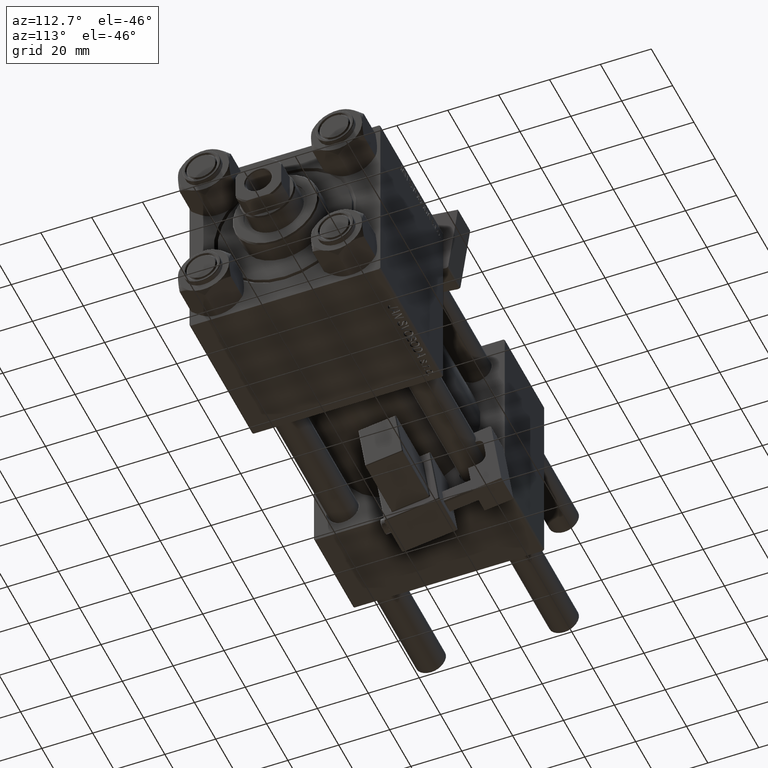
[diagram: clean part render]
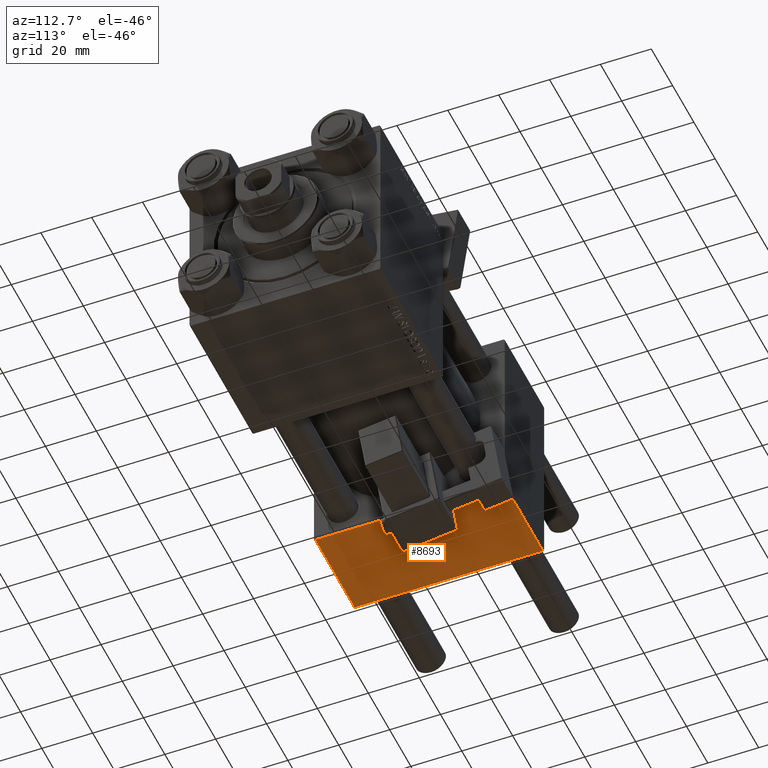
[diagram: same view with one face highlighted and labeled with its STEP entity id]
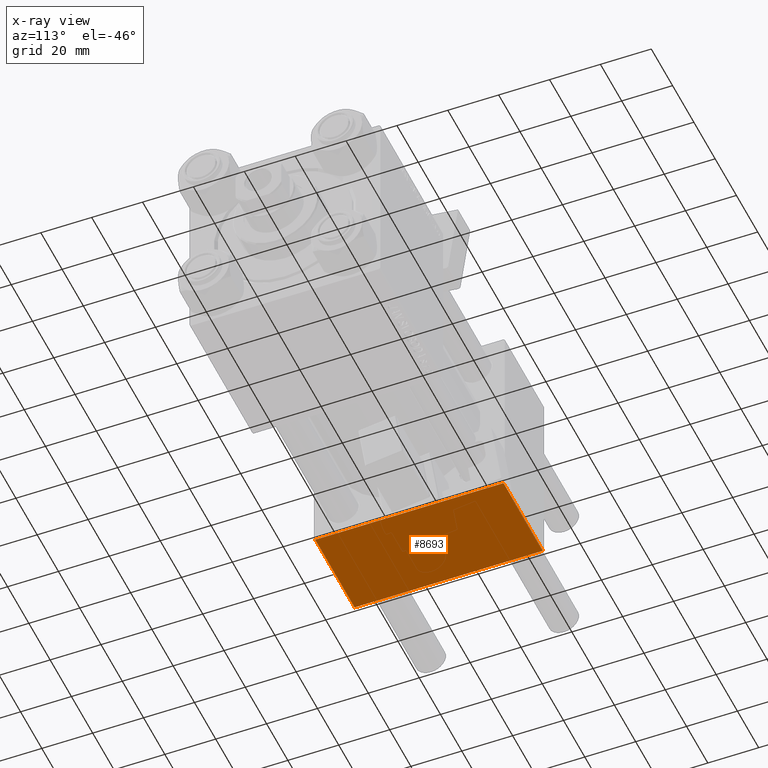
[diagram: x-ray of the same camera — body ghosted, the highlighted face saturated]
A machine part, auxiliary view. The second image highlights one B-rep face of the part: STEP entity #8693.
The next image is the same camera in x-ray: the body ghosted, the highlighted face saturated — about 0% of this face is hidden behind the body in this view.
In plain terms, the highlighted planar face has unit normal (0, 0, -1).
Its self-contained STEP definition (entity closure, byte-faithful):
#2168 = EDGE_LOOP ( 'NONE', ( #3083, #25006, #16548, #2374 ) ) ;
#2318 = DIRECTION ( 'NONE',  ( 0.000000000000000000, 9.251858538542972814E-17, -1.000000000000000000 ) ) ;
#2374 = ORIENTED_EDGE ( 'NONE', *, *, #5019, .T. ) ;
#3083 = ORIENTED_EDGE ( 'NONE', *, *, #44931, .F. ) ;
#4747 = VERTEX_POINT ( 'NONE', #50187 ) ;
#5019 = EDGE_CURVE ( 'NONE', #37050, #31851, #16768, .T. ) ;
#5776 = VECTOR ( 'NONE', #44390, 1000.000000000000000 ) ;
#6783 = CARTESIAN_POINT ( 'NONE',  ( 37.00000000000000000, 37.49999999999999289, -37.50000000000000000 ) ) ;
#6921 = CARTESIAN_POINT ( 'NONE',  ( 0.000000000000000000, 37.49999999999999289, -37.50000000000000000 ) ) ;
#8221 = CARTESIAN_POINT ( 'NONE',  ( 37.00000000000000000, 36.99999999999997868, -37.50000000000000000 ) ) ;
#8693 = ADVANCED_FACE ( 'NONE', ( #15161 ), #45927, .T. ) ;
#11109 = LINE ( 'NONE', #6921, #48318 ) ;
#12067 = VECTOR ( 'NONE', #44502, 1000.000000000000000 ) ;
#14507 = EDGE_CURVE ( 'NONE', #4747, #19148, #16264, .T. ) ;
#15161 = FACE_OUTER_BOUND ( 'NONE', #2168, .T. ) ;
#16264 = LINE ( 'NONE', #25202, #5776 ) ;
#16548 = ORIENTED_EDGE ( 'NONE', *, *, #35590, .T. ) ;
#16768 = LINE ( 'NONE', #24392, #44183 ) ;
#19148 = VERTEX_POINT ( 'NONE', #8221 ) ;
#24392 = CARTESIAN_POINT ( 'NONE',  ( 0.000000000000000000, -37.00000000000002132, -37.50000000000000711 ) ) ;
#24804 = AXIS2_PLACEMENT_3D ( 'NONE', #6783, #2318, #34072 ) ;
#25006 = ORIENTED_EDGE ( 'NONE', *, *, #14507, .T. ) ;
#25202 = CARTESIAN_POINT ( 'NONE',  ( 37.00000000000000000, 36.99999999999997868, -37.50000000000000000 ) ) ;
#25568 = LINE ( 'NONE', #33175, #12067 ) ;
#31851 = VERTEX_POINT ( 'NONE', #38069 ) ;
#33175 = CARTESIAN_POINT ( 'NONE',  ( 37.00000000000000000, 37.49999999999999289, -37.50000000000000000 ) ) ;
#34072 = DIRECTION ( 'NONE',  ( 0.000000000000000000, 1.000000000000000000, 9.251858538542972814E-17 ) ) ;
#35008 = DIRECTION ( 'NONE',  ( 0.000000000000000000, -1.000000000000000000, -9.251858538542972814E-17 ) ) ;
#35590 = EDGE_CURVE ( 'NONE', #19148, #37050, #25568, .T. ) ;
#37050 = VERTEX_POINT ( 'NONE', #41022 ) ;
#38069 = CARTESIAN_POINT ( 'NONE',  ( 0.000000000000000000, -37.00000000000002132, -37.50000000000000711 ) ) ;
#41022 = CARTESIAN_POINT ( 'NONE',  ( 37.00000000000000000, -37.00000000000002132, -37.50000000000000711 ) ) ;
#44183 = VECTOR ( 'NONE', #44877, 1000.000000000000000 ) ;
#44390 = DIRECTION ( 'NONE',  ( 1.000000000000000000, 0.000000000000000000, 0.000000000000000000 ) ) ;
#44502 = DIRECTION ( 'NONE',  ( 0.000000000000000000, -1.000000000000000000, -9.251858538542972814E-17 ) ) ;
#44877 = DIRECTION ( 'NONE',  ( -1.000000000000000000, 0.000000000000000000, 0.000000000000000000 ) ) ;
#44931 = EDGE_CURVE ( 'NONE', #4747, #31851, #11109, .T. ) ;
#45927 = PLANE ( 'NONE',  #24804 ) ;
#48318 = VECTOR ( 'NONE', #35008, 1000.000000000000000 ) ;
#50187 = CARTESIAN_POINT ( 'NONE',  ( 0.000000000000000000, 36.99999999999997868, -37.50000000000000000 ) ) ;